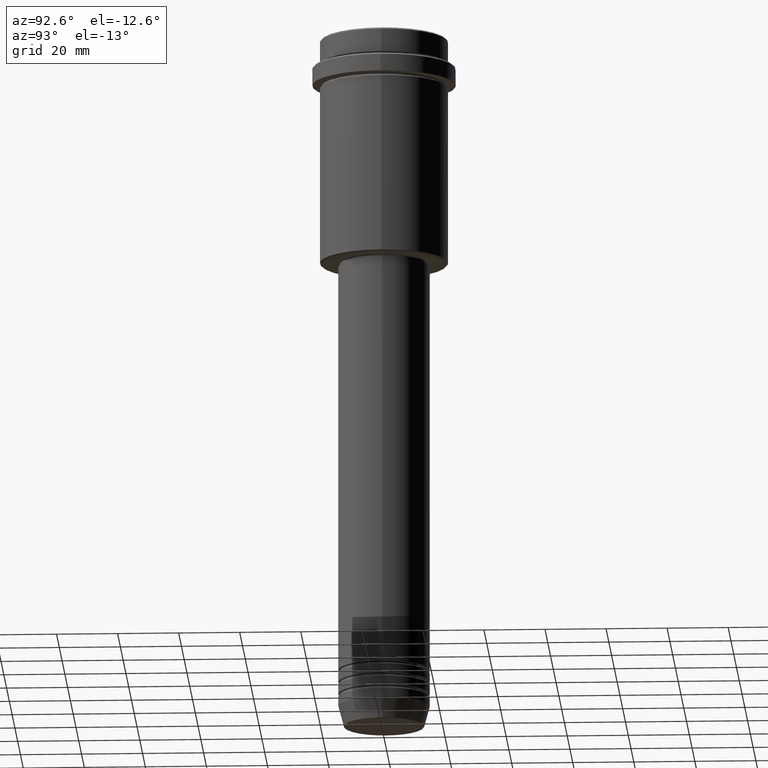
[diagram: clean part render]
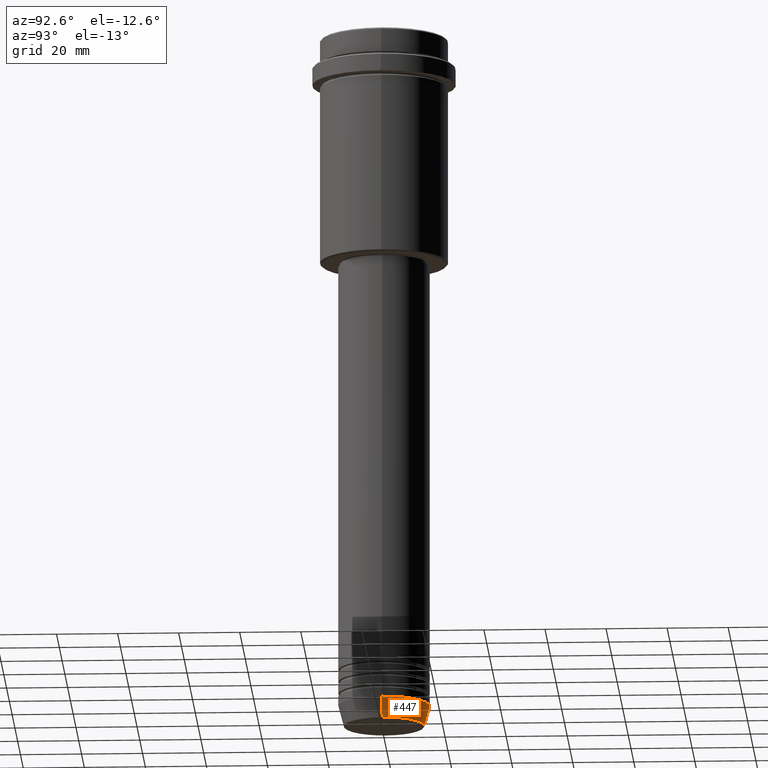
[diagram: same view with one face highlighted and labeled with its STEP entity id]
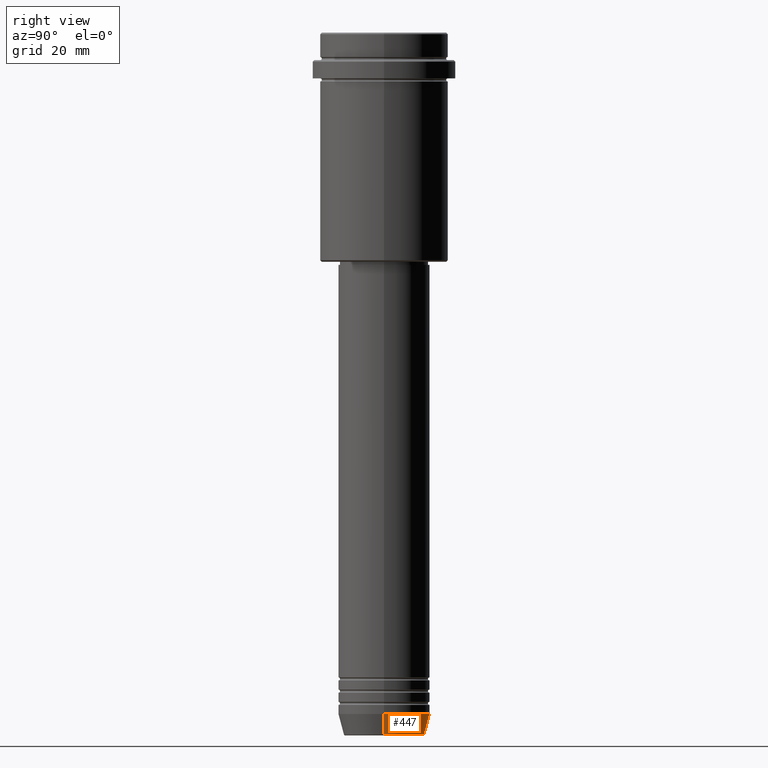
[diagram: same view with one face highlighted and labeled with its STEP entity id]
A machine part, auxiliary view. The second image highlights one B-rep face of the part: STEP entity #447.
A second angle (right view) of the same face is appended — the face is thin or edge-on in the first view.
In plain terms, the highlighted conical surface has half-angle 15 deg.
Its self-contained STEP definition (entity closure, byte-faithful):
#71 = DIRECTION ( 'NONE',  ( 0.2588190451025205174, 0.000000000000000000, 0.9659258262890684232 ) ) ;
#122 = FACE_OUTER_BOUND ( 'NONE', #1230, .T. ) ;
#127 = DIRECTION ( 'NONE',  ( -0.000000000000000000, -0.000000000000000000, 1.000000000000000000 ) ) ;
#237 = DIRECTION ( 'NONE',  ( 1.000000000000000000, 0.000000000000000000, 0.000000000000000000 ) ) ;
#243 = DIRECTION ( 'NONE',  ( -0.000000000000000000, -0.000000000000000000, 1.000000000000000000 ) ) ;
#282 = CARTESIAN_POINT ( 'NONE',  ( -15.00000000000000000, 1.836970198721029589E-15, -223.0000000000000284 ) ) ;
#286 = ORIENTED_EDGE ( 'NONE', *, *, #513, .F. ) ;
#292 = CARTESIAN_POINT ( 'NONE',  ( 0.000000000000000000, 0.000000000000000000, -229.6294095225513274 ) ) ;
#297 = CARTESIAN_POINT ( 'NONE',  ( -15.00000000000000000, 1.836970198721029589E-15, -223.0000000000000284 ) ) ;
#324 = EDGE_CURVE ( 'NONE', #327, #1377, #1074, .T. ) ;
#327 = VERTEX_POINT ( 'NONE', #852 ) ;
#353 = ORIENTED_EDGE ( 'NONE', *, *, #1253, .F. ) ;
#386 = CIRCLE ( 'NONE', #1365, 15.00000000000000000 ) ;
#399 = VERTEX_POINT ( 'NONE', #1060 ) ;
#433 = CONICAL_SURFACE ( 'NONE', #1091, 15.00000000000000000, 0.2617993877991491303 ) ;
#447 = ADVANCED_FACE ( 'NONE', ( #122 ), #433, .T. ) ;
#513 = EDGE_CURVE ( 'NONE', #763, #1377, #386, .T. ) ;
#533 = CIRCLE ( 'NONE', #1320, 13.22365507213720015 ) ;
#557 = CARTESIAN_POINT ( 'NONE',  ( 0.000000000000000000, 0.000000000000000000, -223.0000000000000284 ) ) ;
#726 = DIRECTION ( 'NONE',  ( -0.000000000000000000, -0.000000000000000000, 1.000000000000000000 ) ) ;
#758 = CARTESIAN_POINT ( 'NONE',  ( 15.00000000000000000, 0.000000000000000000, -223.0000000000000284 ) ) ;
#763 = VERTEX_POINT ( 'NONE', #758 ) ;
#852 = CARTESIAN_POINT ( 'NONE',  ( -13.22365507213720015, 1.728200442216588780E-15, -229.6294095225513274 ) ) ;
#952 = DIRECTION ( 'NONE',  ( -0.2588190451025205174, 3.169619151431761243E-17, 0.9659258262890684232 ) ) ;
#977 = VECTOR ( 'NONE', #952, 1000.000000000000114 ) ;
#988 = DIRECTION ( 'NONE',  ( 1.000000000000000000, 0.000000000000000000, 0.000000000000000000 ) ) ;
#1060 = CARTESIAN_POINT ( 'NONE',  ( 13.22365507213720015, 0.000000000000000000, -229.6294095225513274 ) ) ;
#1074 = LINE ( 'NONE', #297, #977 ) ;
#1091 = AXIS2_PLACEMENT_3D ( 'NONE', #1331, #127, #237 ) ;
#1133 = ORIENTED_EDGE ( 'NONE', *, *, #324, .T. ) ;
#1164 = DIRECTION ( 'NONE',  ( 1.000000000000000000, 0.000000000000000000, 0.000000000000000000 ) ) ;
#1183 = LINE ( 'NONE', #1398, #1250 ) ;
#1189 = ORIENTED_EDGE ( 'NONE', *, *, #1226, .T. ) ;
#1226 = EDGE_CURVE ( 'NONE', #399, #327, #533, .T. ) ;
#1230 = EDGE_LOOP ( 'NONE', ( #1189, #1133, #286, #353 ) ) ;
#1250 = VECTOR ( 'NONE', #71, 1000.000000000000114 ) ;
#1253 = EDGE_CURVE ( 'NONE', #399, #763, #1183, .T. ) ;
#1320 = AXIS2_PLACEMENT_3D ( 'NONE', #292, #726, #1164 ) ;
#1331 = CARTESIAN_POINT ( 'NONE',  ( 0.000000000000000000, 0.000000000000000000, -223.0000000000000284 ) ) ;
#1365 = AXIS2_PLACEMENT_3D ( 'NONE', #557, #243, #988 ) ;
#1377 = VERTEX_POINT ( 'NONE', #282 ) ;
#1398 = CARTESIAN_POINT ( 'NONE',  ( 15.00000000000000000, 0.000000000000000000, -223.0000000000000284 ) ) ;